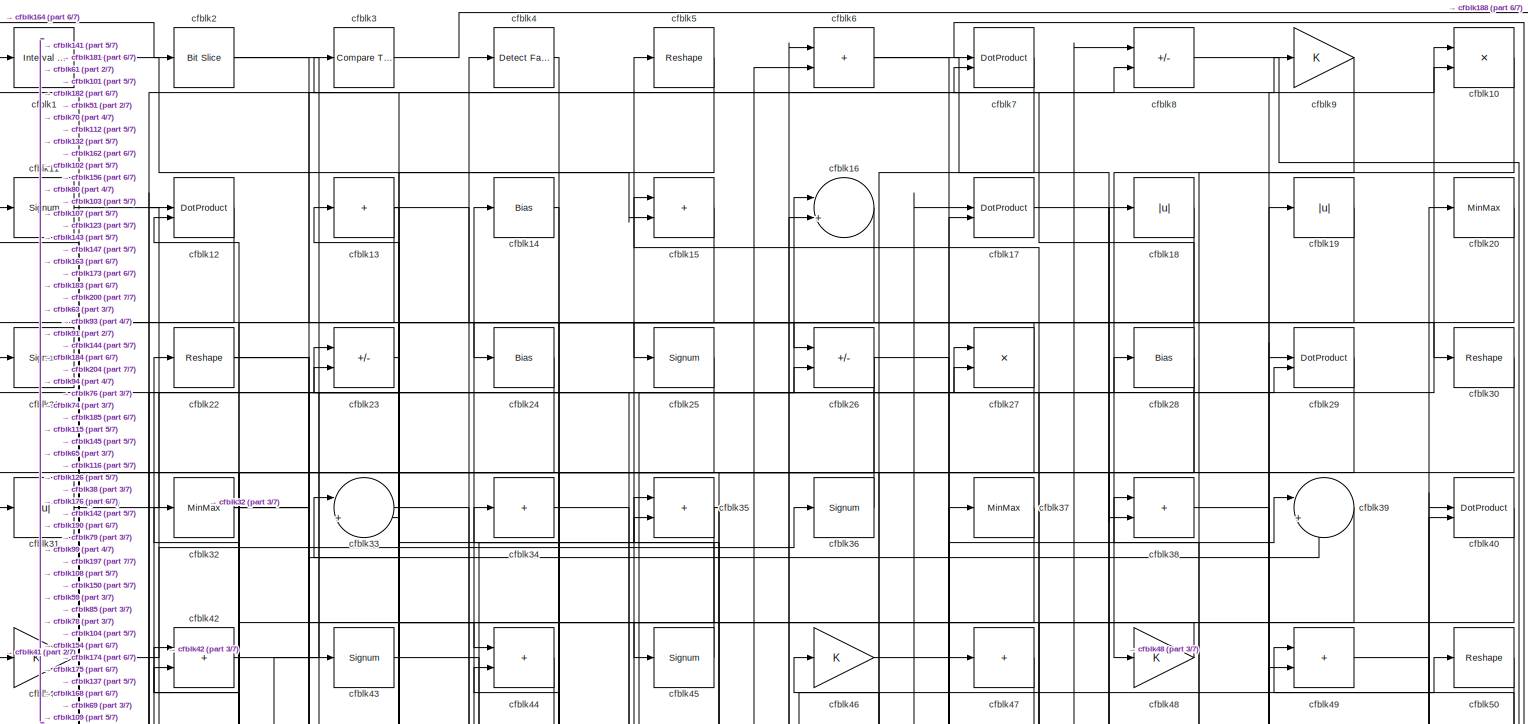
[diagram: root canvas - part 1/7, full width, top band]
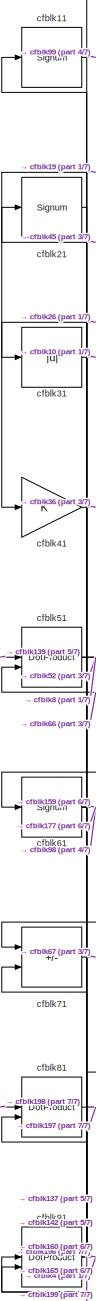
[diagram: root canvas - part 2/7, top left region]
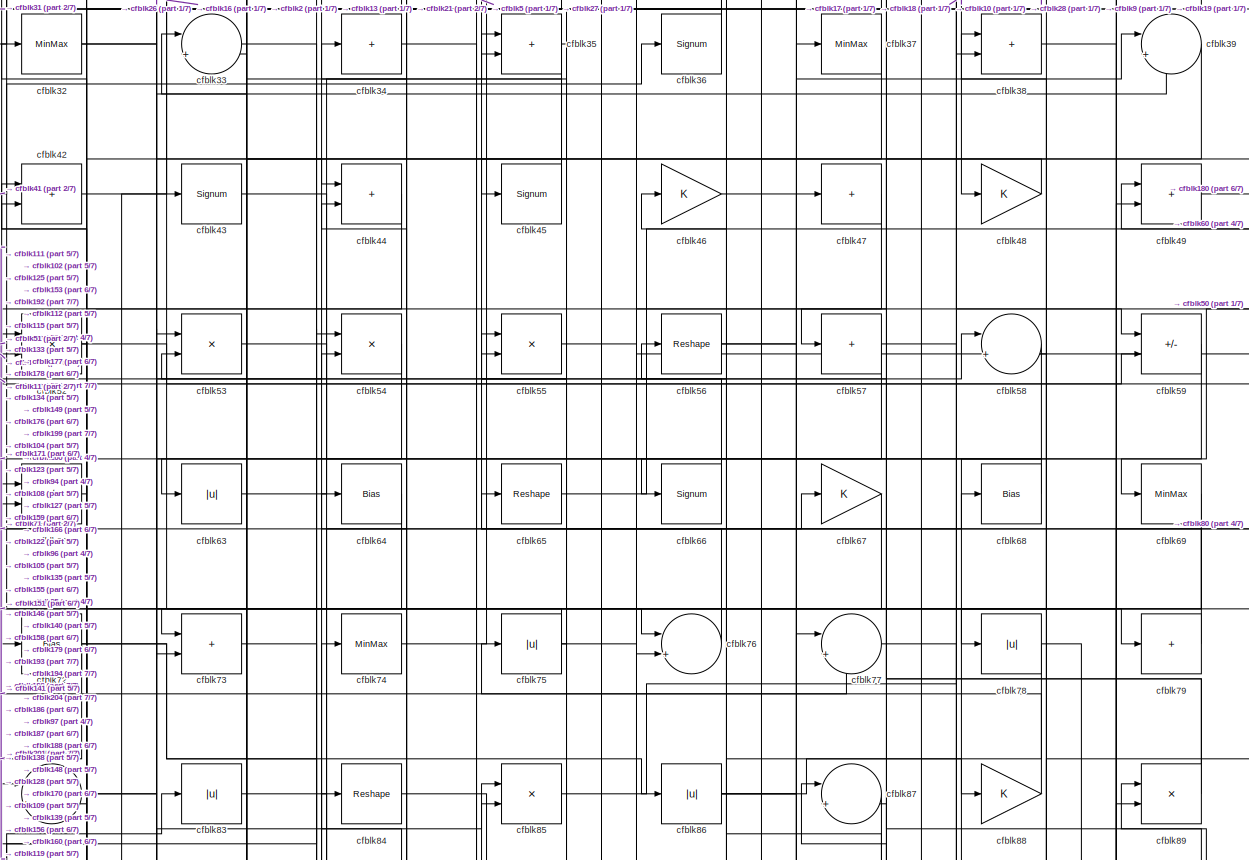
[diagram: root canvas - part 3/7, full width, top band]
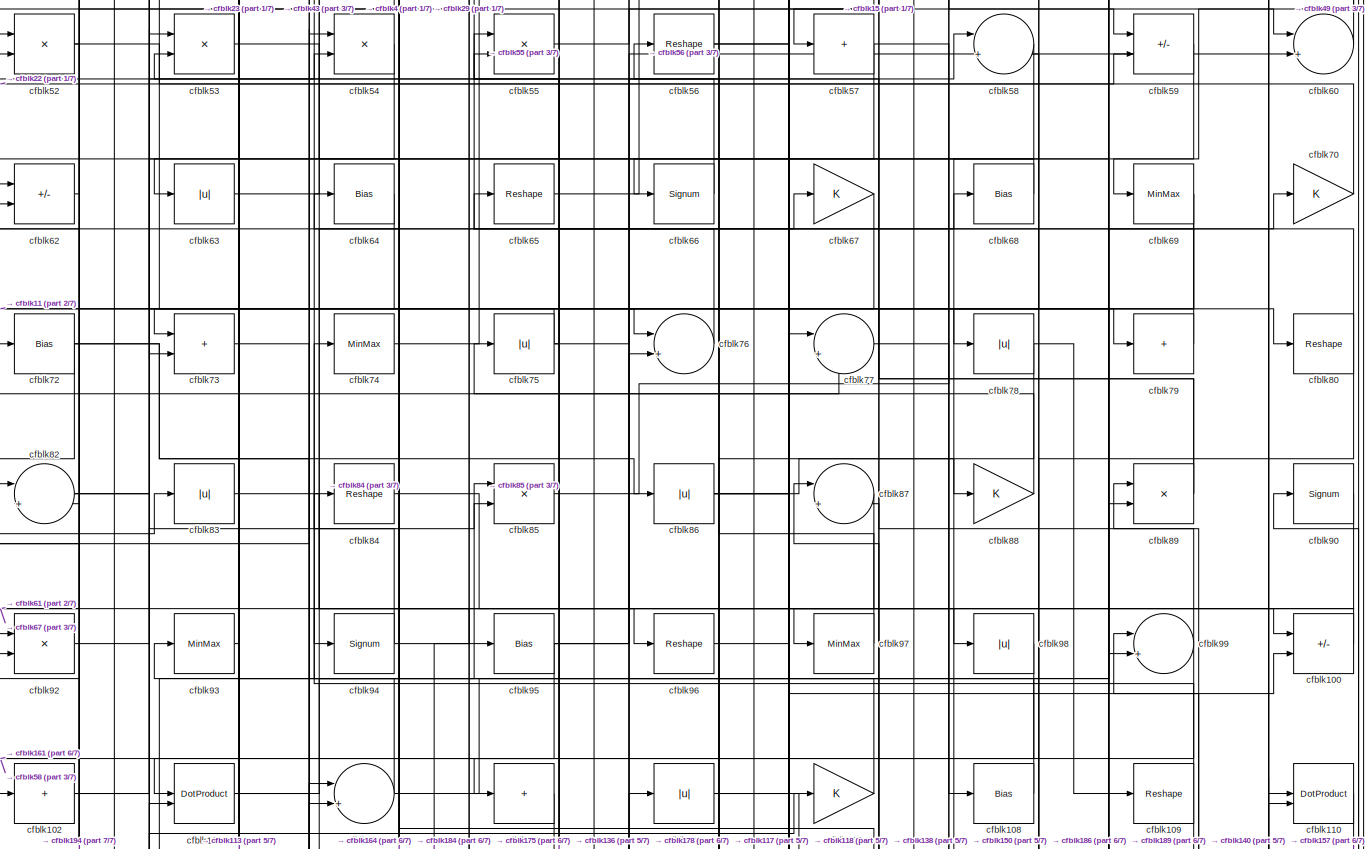
[diagram: root canvas - part 4/7, full width, middle band]
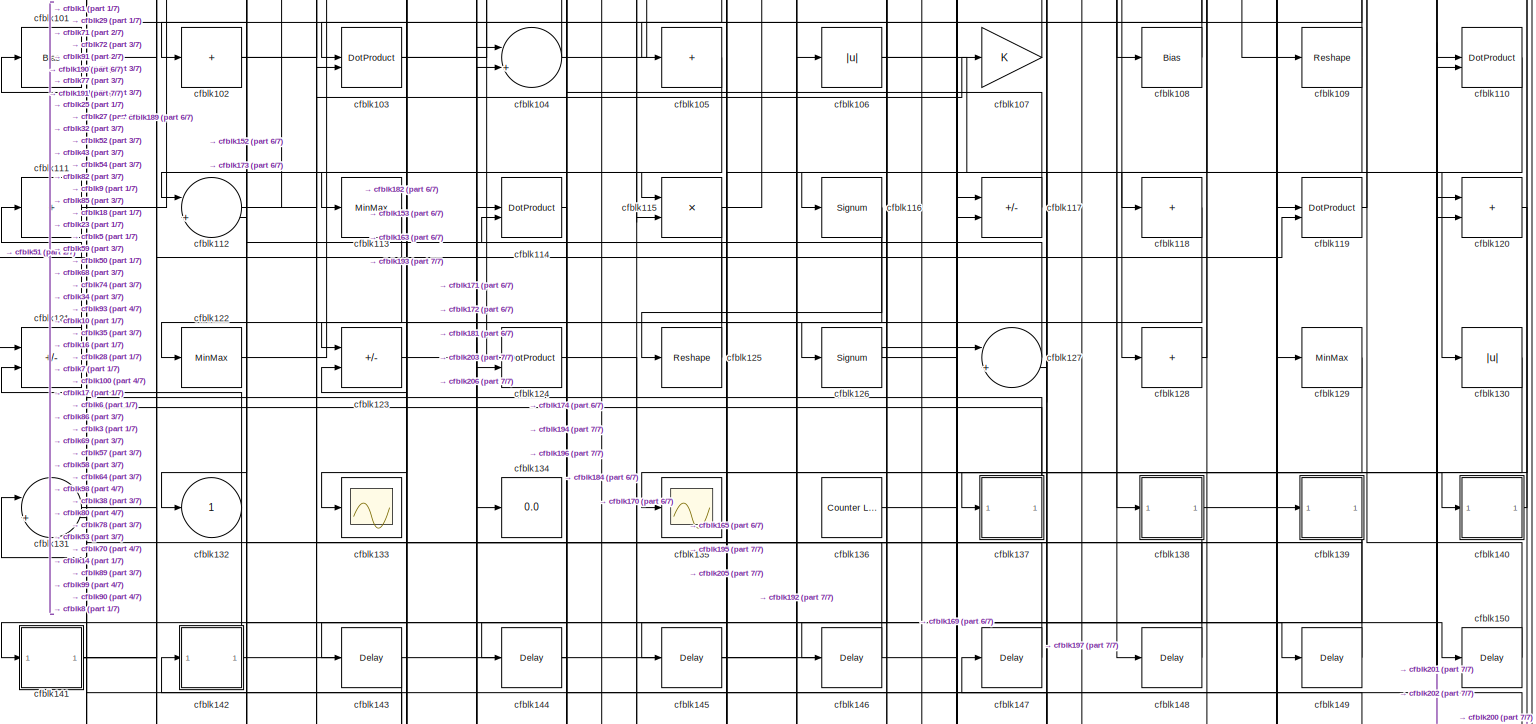
[diagram: root canvas - part 5/7, full width, middle band]
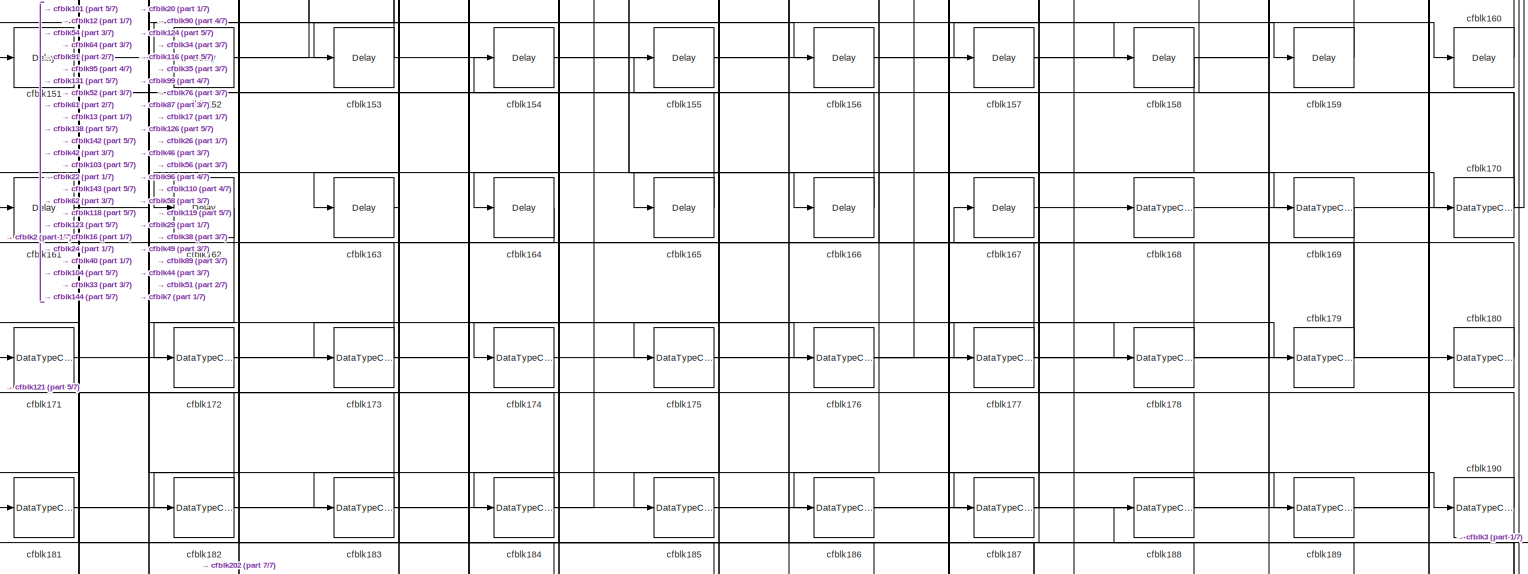
[diagram: root canvas - part 6/7, full width, bottom band]
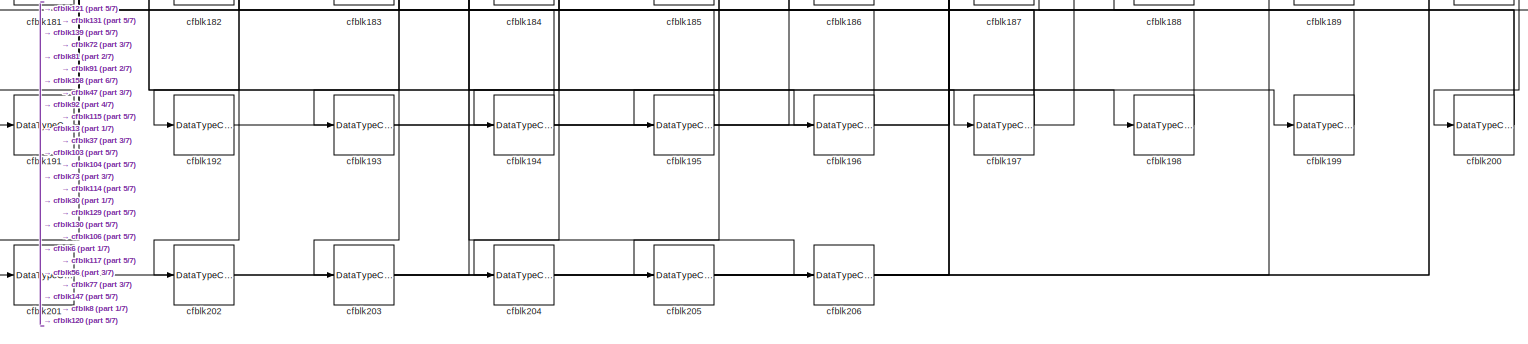
[diagram: root canvas - part 7/7, full width, bottom band]
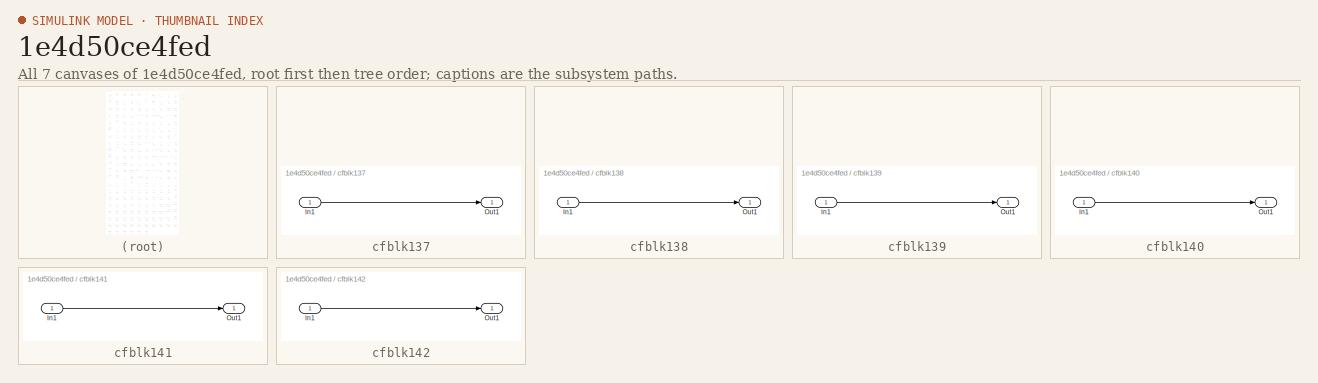
[diagram: thumbnail index - all 7 canvases of the model, root first then tree order]
MODEL slx_1e4d50ce4fed
KIND model
CONFIG AbsTol = auto
CONFIG EnableMultiTasking = off
CONFIG FixedStep = auto
CONFIG MaxStep = auto
CONFIG MinStep = auto
CONFIG RelTol = 1e-3
CONFIG SampleTimeConstraint = Unconstrained
CONFIG SolverName = VariableStepAuto
CONFIG StartTime = 0.0
CONFIG StopTime = 10.0
BLOCK [Reference] cfblk1  REF=hdlsllib/Logic and Bit
Operations/Interval Test
  SourceBlock = hdlsllib/Logic and Bit\nOperations/Interval Test
  SourceType = Interval Test
BLOCK [Product] cfblk10
  Inputs = */
  RndMeth = Zero
  SaturateOnIntegerOverflow = on
BLOCK [Sum] cfblk100
  IconShape = rectangular
  Inputs = +-
BLOCK [Bias] cfblk101
  Bias = 0.0
  SaturateOnIntegerOverflow = off
BLOCK [Sum] cfblk102
  IconShape = rectangular
  Inputs = +
BLOCK [DotProduct] cfblk103
  OutDataTypeStr = Inherit: Inherit via internal rule
BLOCK [Sum] cfblk104
  Inputs = |++
BLOCK [Sum] cfblk105
  IconShape = rectangular
  Inputs = +
BLOCK [Abs] cfblk106
  SaturateOnIntegerOverflow = off
BLOCK [Gain] cfblk107
BLOCK [Bias] cfblk108
  Bias = 0.0
  SaturateOnIntegerOverflow = off
BLOCK [Reshape] cfblk109
BLOCK [Signum] cfblk11
BLOCK [DotProduct] cfblk110
  OutDataTypeStr = Inherit: Inherit via internal rule
BLOCK [Sum] cfblk111
  IconShape = rectangular
  Inputs = +
BLOCK [Sum] cfblk112
  Inputs = |++
BLOCK [MinMax] cfblk113
BLOCK [DotProduct] cfblk114
  OutDataTypeStr = Inherit: Inherit via internal rule
BLOCK [Product] cfblk115
  Inputs = */
  RndMeth = Zero
  SaturateOnIntegerOverflow = on
BLOCK [Signum] cfblk116
BLOCK [Sum] cfblk117
  IconShape = rectangular
  Inputs = +-
BLOCK [Sum] cfblk118
  IconShape = rectangular
  Inputs = +
BLOCK [DotProduct] cfblk119
  OutDataTypeStr = Inherit: Inherit via internal rule
BLOCK [DotProduct] cfblk12
  OutDataTypeStr = Inherit: Inherit via internal rule
BLOCK [Sum] cfblk120
  IconShape = rectangular
BLOCK [Sum] cfblk121
  IconShape = rectangular
  Inputs = +-
BLOCK [MinMax] cfblk122
BLOCK [Sum] cfblk123
  IconShape = rectangular
  Inputs = +-
BLOCK [DotProduct] cfblk124
  OutDataTypeStr = Inherit: Inherit via internal rule
BLOCK [Reshape] cfblk125
BLOCK [Signum] cfblk126
BLOCK [Sum] cfblk127
  Inputs = |++
BLOCK [Sum] cfblk128
  IconShape = rectangular
  Inputs = +
BLOCK [MinMax] cfblk129
BLOCK [Sum] cfblk13
  IconShape = rectangular
  Inputs = +
BLOCK [Abs] cfblk130
  SaturateOnIntegerOverflow = off
BLOCK [Sum] cfblk131
  Inputs = |++
BLOCK [Outport] cfblk132
  VectorParamsAs1DForOutWhenUnconnected = off
BLOCK [Scope] cfblk133
  Floating = off
  NumInputPorts = 1
  ScopeSpecificationString = Simulink.scopes.TimeScopeBlockCfg('CurrentConfiguration', extmgr.ConfigurationSet(extmgr.Configuration('Core','General UI',true),extmgr.Configuration('Core','Source UI',true),extmgr.Configuration('Sources','WiredSimulink',true,'DataLoggingVariableName','ScopeData2','DataLoggingSaveFormat','Array','DataLoggingLimitDataPoints',true,'DataLoggingDecimation','1'),extmgr.Configuration('Visuals','Time Do...<+868ch>
BLOCK [Display] cfblk134
  Decimation = 1
BLOCK [Scope] cfblk135
  Floating = off
  NumInputPorts = 1
  ScopeSpecificationString = Simulink.scopes.TimeScopeBlockCfg('CurrentConfiguration', extmgr.ConfigurationSet(extmgr.Configuration('Core','General UI',true),extmgr.Configuration('Core','Source UI',true),extmgr.Configuration('Sources','WiredSimulink',true,'DataLoggingVariableName','ScopeData2','DataLoggingSaveFormat','Array','DataLoggingLimitDataPoints',true,'DataLoggingDecimation','1'),extmgr.Configuration('Visuals','Time Do...<+868ch>
BLOCK [Reference] cfblk136  REF=hdlsllib/Sources/Counter
Limited
  SourceBlock = hdlsllib/Sources/Counter\nLimited
  SourceType = Counter Limited
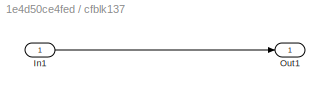
BLOCK [SubSystem] cfblk137
  LibrarySourceBlock = hdlsllib/Ports &\nSubsystems/Subsystem
BLOCK [Inport] cfblk137/In1
BLOCK [Outport] cfblk137/Out1
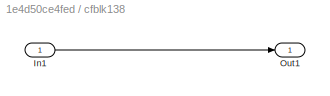
BLOCK [SubSystem] cfblk138
  LibrarySourceBlock = hdlsllib/Ports &\nSubsystems/Subsystem
BLOCK [Inport] cfblk138/In1
BLOCK [Outport] cfblk138/Out1
BLOCK [SubSystem] cfblk139
  LibrarySourceBlock = hdlsllib/Ports &\nSubsystems/Subsystem
BLOCK [Inport] cfblk139/In1
BLOCK [Outport] cfblk139/Out1
BLOCK [Bias] cfblk14
  Bias = 0.0
  SaturateOnIntegerOverflow = off
BLOCK [SubSystem] cfblk140
  LibrarySourceBlock = hdlsllib/Ports &\nSubsystems/Subsystem
BLOCK [Inport] cfblk140/In1
BLOCK [Outport] cfblk140/Out1
BLOCK [SubSystem] cfblk141
  LibrarySourceBlock = hdlsllib/Ports &\nSubsystems/Subsystem
BLOCK [Inport] cfblk141/In1
BLOCK [Outport] cfblk141/Out1
BLOCK [SubSystem] cfblk142
  LibrarySourceBlock = hdlsllib/Ports &\nSubsystems/Subsystem
BLOCK [Inport] cfblk142/In1
BLOCK [Outport] cfblk142/Out1
BLOCK [Delay] cfblk143
  InputPortMap = u0
  SampleTime = 1
BLOCK [Delay] cfblk144
  InputPortMap = u0
  SampleTime = 1
BLOCK [Delay] cfblk145
  InputPortMap = u0
  SampleTime = 1
BLOCK [Delay] cfblk146
  InputPortMap = u0
  SampleTime = 1
BLOCK [Delay] cfblk147
  InputPortMap = u0
  SampleTime = 1
BLOCK [Delay] cfblk148
  InputPortMap = u0
  SampleTime = 1
BLOCK [Delay] cfblk149
  InputPortMap = u0
  SampleTime = 1
BLOCK [Sum] cfblk15
  IconShape = rectangular
BLOCK [Delay] cfblk150
  InputPortMap = u0
  SampleTime = 1
BLOCK [Delay] cfblk151
  InputPortMap = u0
  SampleTime = 1
BLOCK [Delay] cfblk152
  InputPortMap = u0
  SampleTime = 1
BLOCK [Delay] cfblk153
  InputPortMap = u0
  SampleTime = 1
BLOCK [Delay] cfblk154
  InputPortMap = u0
  SampleTime = 1
BLOCK [Delay] cfblk155
  InputPortMap = u0
  SampleTime = 1
BLOCK [Delay] cfblk156
  InputPortMap = u0
  SampleTime = 1
BLOCK [Delay] cfblk157
  InputPortMap = u0
  SampleTime = 1
BLOCK [Delay] cfblk158
  InputPortMap = u0
  SampleTime = 1
BLOCK [Delay] cfblk159
  InputPortMap = u0
  SampleTime = 1
BLOCK [Sum] cfblk16
  Inputs = |++
BLOCK [Delay] cfblk160
  InputPortMap = u0
  SampleTime = 1
BLOCK [Delay] cfblk161
  InputPortMap = u0
  SampleTime = 1
BLOCK [Delay] cfblk162
  InputPortMap = u0
  SampleTime = 1
BLOCK [Delay] cfblk163
  InputPortMap = u0
  SampleTime = 1
BLOCK [Delay] cfblk164
  InputPortMap = u0
  SampleTime = 1
BLOCK [Delay] cfblk165
  InputPortMap = u0
  SampleTime = 1
BLOCK [Delay] cfblk166
  InputPortMap = u0
  SampleTime = 1
BLOCK [Delay] cfblk167
  InputPortMap = u0
  SampleTime = 1
BLOCK [DataTypeConversion] cfblk168
  OutDataTypeStr = uint8
  RndMeth = Floor
  SaturateOnIntegerOverflow = off
BLOCK [DataTypeConversion] cfblk169
  OutDataTypeStr = uint8
  RndMeth = Floor
  SaturateOnIntegerOverflow = off
BLOCK [DotProduct] cfblk17
  OutDataTypeStr = Inherit: Inherit via internal rule
BLOCK [DataTypeConversion] cfblk170
  RndMeth = Floor
  SaturateOnIntegerOverflow = off
BLOCK [DataTypeConversion] cfblk171
  OutDataTypeStr = uint8
  RndMeth = Floor
  SaturateOnIntegerOverflow = off
BLOCK [DataTypeConversion] cfblk172
  OutDataTypeStr = uint8
  RndMeth = Floor
  SaturateOnIntegerOverflow = off
BLOCK [DataTypeConversion] cfblk173
  OutDataTypeStr = uint8
  RndMeth = Floor
  SaturateOnIntegerOverflow = off
BLOCK [DataTypeConversion] cfblk174
  OutDataTypeStr = uint8
  RndMeth = Floor
  SaturateOnIntegerOverflow = off
BLOCK [DataTypeConversion] cfblk175
  OutDataTypeStr = uint8
  RndMeth = Floor
  SaturateOnIntegerOverflow = off
BLOCK [DataTypeConversion] cfblk176
  RndMeth = Floor
  SaturateOnIntegerOverflow = off
BLOCK [DataTypeConversion] cfblk177
  OutDataTypeStr = uint8
  RndMeth = Floor
  SaturateOnIntegerOverflow = off
BLOCK [DataTypeConversion] cfblk178
  OutDataTypeStr = uint8
  RndMeth = Floor
  SaturateOnIntegerOverflow = off
BLOCK [DataTypeConversion] cfblk179
  RndMeth = Floor
  SaturateOnIntegerOverflow = off
BLOCK [Abs] cfblk18
  SaturateOnIntegerOverflow = off
BLOCK [DataTypeConversion] cfblk180
  OutDataTypeStr = uint8
  RndMeth = Floor
  SaturateOnIntegerOverflow = off
BLOCK [DataTypeConversion] cfblk181
  RndMeth = Floor
  SaturateOnIntegerOverflow = off
BLOCK [DataTypeConversion] cfblk182
  OutDataTypeStr = uint8
  RndMeth = Floor
  SaturateOnIntegerOverflow = off
BLOCK [DataTypeConversion] cfblk183
  OutDataTypeStr = uint8
  RndMeth = Floor
  SaturateOnIntegerOverflow = off
BLOCK [DataTypeConversion] cfblk184
  RndMeth = Floor
  SaturateOnIntegerOverflow = off
BLOCK [DataTypeConversion] cfblk185
  OutDataTypeStr = uint8
  RndMeth = Floor
  SaturateOnIntegerOverflow = off
BLOCK [DataTypeConversion] cfblk186
  OutDataTypeStr = uint8
  RndMeth = Floor
  SaturateOnIntegerOverflow = off
BLOCK [DataTypeConversion] cfblk187
  OutDataTypeStr = uint8
  RndMeth = Floor
  SaturateOnIntegerOverflow = off
BLOCK [DataTypeConversion] cfblk188
  OutDataTypeStr = uint8
  RndMeth = Floor
  SaturateOnIntegerOverflow = off
BLOCK [DataTypeConversion] cfblk189
  OutDataTypeStr = uint8
  RndMeth = Floor
  SaturateOnIntegerOverflow = off
BLOCK [Abs] cfblk19
  SaturateOnIntegerOverflow = off
BLOCK [DataTypeConversion] cfblk190
  OutDataTypeStr = uint8
  RndMeth = Floor
  SaturateOnIntegerOverflow = off
BLOCK [DataTypeConversion] cfblk191
  OutDataTypeStr = uint8
  RndMeth = Floor
  SaturateOnIntegerOverflow = off
BLOCK [DataTypeConversion] cfblk192
  OutDataTypeStr = uint8
  RndMeth = Floor
  SaturateOnIntegerOverflow = off
BLOCK [DataTypeConversion] cfblk193
  OutDataTypeStr = uint8
  RndMeth = Floor
  SaturateOnIntegerOverflow = off
BLOCK [DataTypeConversion] cfblk194
  RndMeth = Floor
  SaturateOnIntegerOverflow = off
BLOCK [DataTypeConversion] cfblk195
  OutDataTypeStr = uint8
  RndMeth = Floor
  SaturateOnIntegerOverflow = off
BLOCK [DataTypeConversion] cfblk196
  OutDataTypeStr = uint8
  RndMeth = Floor
  SaturateOnIntegerOverflow = off
BLOCK [DataTypeConversion] cfblk197
  RndMeth = Floor
  SaturateOnIntegerOverflow = off
BLOCK [DataTypeConversion] cfblk198
  OutDataTypeStr = uint8
  RndMeth = Floor
  SaturateOnIntegerOverflow = off
BLOCK [DataTypeConversion] cfblk199
  OutDataTypeStr = uint8
  RndMeth = Floor
  SaturateOnIntegerOverflow = off
BLOCK [Reference] cfblk2  REF=hdlsllib/Logic and Bit
Operations/Bit Slice
  SourceBlock = hdlsllib/Logic and Bit\nOperations/Bit Slice
  SourceType = Bit Slice
BLOCK [MinMax] cfblk20
BLOCK [DataTypeConversion] cfblk200
  RndMeth = Floor
  SaturateOnIntegerOverflow = off
BLOCK [DataTypeConversion] cfblk201
  OutDataTypeStr = uint8
  RndMeth = Floor
  SaturateOnIntegerOverflow = off
BLOCK [DataTypeConversion] cfblk202
  OutDataTypeStr = uint8
  RndMeth = Floor
  SaturateOnIntegerOverflow = off
BLOCK [DataTypeConversion] cfblk203
  RndMeth = Floor
  SaturateOnIntegerOverflow = off
BLOCK [DataTypeConversion] cfblk204
  OutDataTypeStr = uint8
  RndMeth = Floor
  SaturateOnIntegerOverflow = off
BLOCK [DataTypeConversion] cfblk205
  OutDataTypeStr = uint8
  RndMeth = Floor
  SaturateOnIntegerOverflow = off
BLOCK [DataTypeConversion] cfblk206
  OutDataTypeStr = uint8
  RndMeth = Floor
  SaturateOnIntegerOverflow = off
BLOCK [Signum] cfblk21
BLOCK [Reshape] cfblk22
BLOCK [Sum] cfblk23
  IconShape = rectangular
  Inputs = +-
BLOCK [Bias] cfblk24
  Bias = 0.0
  SaturateOnIntegerOverflow = off
BLOCK [Signum] cfblk25
BLOCK [Sum] cfblk26
  IconShape = rectangular
  Inputs = +-
BLOCK [Product] cfblk27
  Inputs = */
  RndMeth = Zero
  SaturateOnIntegerOverflow = on
BLOCK [Bias] cfblk28
  Bias = 0.0
  SaturateOnIntegerOverflow = off
BLOCK [DotProduct] cfblk29
  OutDataTypeStr = Inherit: Inherit via internal rule
BLOCK [Reference] cfblk3  REF=hdlsllib/Logic and Bit
Operations/Compare
To Zero
  SourceBlock = hdlsllib/Logic and Bit\nOperations/Compare\nTo Zero
  SourceType = Compare To Zero
BLOCK [Reshape] cfblk30
BLOCK [Abs] cfblk31
  SaturateOnIntegerOverflow = off
BLOCK [MinMax] cfblk32
BLOCK [Sum] cfblk33
  Inputs = |++
BLOCK [Sum] cfblk34
  IconShape = rectangular
  Inputs = +
BLOCK [Sum] cfblk35
  IconShape = rectangular
BLOCK [Signum] cfblk36
BLOCK [MinMax] cfblk37
BLOCK [Sum] cfblk38
  IconShape = rectangular
BLOCK [Sum] cfblk39
  Inputs = |++
BLOCK [Reference] cfblk4  REF=hdlsllib/Logic and Bit
Operations/Detect Fall
Negative
  SourceBlock = hdlsllib/Logic and Bit\nOperations/Detect Fall\nNegative
  SourceType = Detect Fall Negative
BLOCK [DotProduct] cfblk40
  OutDataTypeStr = Inherit: Inherit via internal rule
BLOCK [Gain] cfblk41
BLOCK [Sum] cfblk42
  IconShape = rectangular
BLOCK [Signum] cfblk43
BLOCK [Sum] cfblk44
  IconShape = rectangular
BLOCK [Signum] cfblk45
BLOCK [Gain] cfblk46
BLOCK [Sum] cfblk47
  IconShape = rectangular
  Inputs = +
BLOCK [Gain] cfblk48
BLOCK [Sum] cfblk49
  IconShape = rectangular
BLOCK [Reshape] cfblk5
BLOCK [Reshape] cfblk50
BLOCK [DotProduct] cfblk51
  OutDataTypeStr = Inherit: Inherit via internal rule
BLOCK [Product] cfblk52
  Inputs = */
  RndMeth = Zero
  SaturateOnIntegerOverflow = on
BLOCK [Product] cfblk53
  Inputs = */
  RndMeth = Zero
  SaturateOnIntegerOverflow = on
BLOCK [Product] cfblk54
  Inputs = */
  RndMeth = Zero
  SaturateOnIntegerOverflow = on
BLOCK [Product] cfblk55
  Inputs = */
  RndMeth = Zero
  SaturateOnIntegerOverflow = on
BLOCK [Reshape] cfblk56
BLOCK [Sum] cfblk57
  IconShape = rectangular
  Inputs = +
BLOCK [Sum] cfblk58
  Inputs = |++
BLOCK [Sum] cfblk59
  IconShape = rectangular
  Inputs = +-
BLOCK [Sum] cfblk6
  IconShape = rectangular
BLOCK [Sum] cfblk60
  Inputs = |++
BLOCK [Signum] cfblk61
BLOCK [Sum] cfblk62
  IconShape = rectangular
  Inputs = +-
BLOCK [Abs] cfblk63
  SaturateOnIntegerOverflow = off
BLOCK [Bias] cfblk64
  Bias = 0.0
  SaturateOnIntegerOverflow = off
BLOCK [Reshape] cfblk65
BLOCK [Signum] cfblk66
BLOCK [Gain] cfblk67
BLOCK [Bias] cfblk68
  Bias = 0.0
  SaturateOnIntegerOverflow = off
BLOCK [MinMax] cfblk69
BLOCK [DotProduct] cfblk7
  OutDataTypeStr = Inherit: Inherit via internal rule
BLOCK [Gain] cfblk70
BLOCK [Sum] cfblk71
  IconShape = rectangular
  Inputs = +-
BLOCK [Bias] cfblk72
  Bias = 0.0
  SaturateOnIntegerOverflow = off
BLOCK [Sum] cfblk73
  IconShape = rectangular
BLOCK [MinMax] cfblk74
BLOCK [Abs] cfblk75
  SaturateOnIntegerOverflow = off
BLOCK [Sum] cfblk76
  Inputs = |++
BLOCK [Sum] cfblk77
  Inputs = |++
BLOCK [Abs] cfblk78
  SaturateOnIntegerOverflow = off
BLOCK [Sum] cfblk79
  IconShape = rectangular
  Inputs = +
BLOCK [Sum] cfblk8
  IconShape = rectangular
  Inputs = +-
BLOCK [Reshape] cfblk80
BLOCK [DotProduct] cfblk81
  OutDataTypeStr = Inherit: Inherit via internal rule
BLOCK [Sum] cfblk82
  Inputs = |++
BLOCK [Abs] cfblk83
  SaturateOnIntegerOverflow = off
BLOCK [Reshape] cfblk84
BLOCK [Product] cfblk85
  Inputs = */
  RndMeth = Zero
  SaturateOnIntegerOverflow = on
BLOCK [Abs] cfblk86
  SaturateOnIntegerOverflow = off
BLOCK [Sum] cfblk87
  Inputs = |++
BLOCK [Gain] cfblk88
BLOCK [Product] cfblk89
  Inputs = */
  RndMeth = Zero
  SaturateOnIntegerOverflow = on
BLOCK [Gain] cfblk9
BLOCK [Signum] cfblk90
BLOCK [DotProduct] cfblk91
  OutDataTypeStr = Inherit: Inherit via internal rule
BLOCK [Product] cfblk92
  Inputs = */
  RndMeth = Zero
  SaturateOnIntegerOverflow = on
BLOCK [MinMax] cfblk93
BLOCK [Signum] cfblk94
BLOCK [Bias] cfblk95
  Bias = 0.0
  SaturateOnIntegerOverflow = off
BLOCK [Reshape] cfblk96
BLOCK [MinMax] cfblk97
BLOCK [Abs] cfblk98
  SaturateOnIntegerOverflow = off
BLOCK [Sum] cfblk99
  Inputs = |++
LINE cfblk100:1 -> cfblk97:1
LINE cfblk101:1 -> cfblk28:1
NET cfblk102:1 -> cfblk54:2, cfblk9:1
NET cfblk103:1 -> cfblk206:1, cfblk50:1
NET cfblk104:1 -> cfblk10:2, cfblk74:1
LINE cfblk105:1 -> cfblk112:1
NET cfblk106:1 -> cfblk130:1, cfblk149:1
LINE cfblk107:1 -> cfblk3:1
LINE cfblk108:1 -> cfblk64:1
NET cfblk109:1 -> cfblk145:1, cfblk14:1
LINE cfblk10:1 -> cfblk48:1
LINE cfblk110:1 -> cfblk157:1
LINE cfblk111:1 -> cfblk83:1
NET cfblk112:1 -> cfblk107:1, cfblk43:1
LINE cfblk113:1 -> cfblk122:1
LINE cfblk114:1 -> cfblk194:1
NET cfblk115:1 -> cfblk193:1, cfblk6:2
NET cfblk116:1 -> cfblk125:1, cfblk165:1
LINE cfblk117:1 -> cfblk93:1
LINE cfblk118:1 -> cfblk153:1
LINE cfblk119:1 -> cfblk89:1
LINE cfblk11:1 -> cfblk99:2
LINE cfblk120:1 -> cfblk200:1
LINE cfblk121:1 -> cfblk111:1
LINE cfblk122:1 -> cfblk85:1
LINE cfblk123:1 -> cfblk68:1
LINE cfblk124:1 -> cfblk170:1
LINE cfblk125:1 -> cfblk32:1
NET cfblk126:1 -> cfblk127:1, cfblk169:1
LINE cfblk127:1 -> cfblk34:1
LINE cfblk128:1 -> cfblk38:1
LINE cfblk129:1 -> cfblk205:1
LINE cfblk12:1 -> cfblk181:1
LINE cfblk130:1 -> cfblk195:1
LINE cfblk131:1 -> cfblk189:1
LINE cfblk136:1 -> cfblk100:2
LINE cfblk137/In1:1 -> cfblk137/Out1:1
NET cfblk137:1 -> cfblk1:1, cfblk71:2
LINE cfblk138/In1:1 -> cfblk138/Out1:1
NET cfblk138:1 -> cfblk152:1, cfblk70:1
LINE cfblk139/In1:1 -> cfblk139/Out1:1
NET cfblk139:1 -> cfblk191:1, cfblk51:1
NET cfblk13:1 -> cfblk162:1, cfblk26:1, cfblk63:1
LINE cfblk140/In1:1 -> cfblk140/Out1:1
LINE cfblk140:1 -> cfblk90:1
LINE cfblk141/In1:1 -> cfblk141/Out1:1
NET cfblk141:1 -> cfblk119:2, cfblk62:1, cfblk77:2
LINE cfblk142/In1:1 -> cfblk142/Out1:1
NET cfblk142:1 -> cfblk17:2, cfblk91:1
LINE cfblk143:1 -> cfblk182:1
LINE cfblk144:1 -> cfblk174:1
LINE cfblk145:1 -> cfblk16:2
LINE cfblk146:1 -> cfblk53:1
LINE cfblk147:1 -> cfblk23:2
LINE cfblk148:1 -> cfblk82:1
LINE cfblk149:1 -> cfblk54:1
LINE cfblk14:1 -> cfblk144:1
LINE cfblk150:1 -> cfblk99:1
LINE cfblk151:1 -> cfblk76:2
LINE cfblk152:1 -> cfblk103:2
LINE cfblk153:1 -> cfblk62:2
LINE cfblk154:1 -> cfblk29:1
LINE cfblk155:1 -> cfblk35:2
LINE cfblk156:1 -> cfblk89:2
LINE cfblk157:1 -> cfblk187:1
LINE cfblk158:1 -> cfblk202:1
LINE cfblk159:1 -> cfblk44:2
LINE cfblk15:1 -> cfblk25:1
LINE cfblk160:1 -> cfblk51:2
LINE cfblk161:1 -> cfblk52:2
LINE cfblk162:1 -> cfblk172:1
LINE cfblk163:1 -> cfblk123:2
LINE cfblk164:1 -> cfblk2:1
LINE cfblk165:1 -> cfblk91:2
LINE cfblk166:1 -> cfblk42:2
LINE cfblk167:1 -> cfblk168:1
LINE cfblk168:1 -> cfblk7:1
LINE cfblk169:1 -> cfblk167:1
LINE cfblk16:1 -> cfblk183:1
NET cfblk170:1 -> cfblk101:1, cfblk58:2
LINE cfblk171:1 -> cfblk124:1
LINE cfblk172:1 -> cfblk124:2
LINE cfblk173:1 -> cfblk142:1
LINE cfblk174:1 -> cfblk40:1
LINE cfblk175:1 -> cfblk40:2
NET cfblk176:1 -> cfblk17:1, cfblk49:2
LINE cfblk177:1 -> cfblk33:1
LINE cfblk178:1 -> cfblk33:2
NET cfblk179:1 -> cfblk154:1, cfblk155:1
LINE cfblk17:1 -> cfblk59:1
LINE cfblk180:1 -> cfblk46:1
NET cfblk181:1 -> cfblk104:2, cfblk119:1
LINE cfblk182:1 -> cfblk12:1
LINE cfblk183:1 -> cfblk12:2
NET cfblk184:1 -> cfblk121:1, cfblk95:1
LINE cfblk185:1 -> cfblk20:1
LINE cfblk186:1 -> cfblk110:1
LINE cfblk187:1 -> cfblk87:1
LINE cfblk188:1 -> cfblk87:2
LINE cfblk189:1 -> cfblk110:2
LINE cfblk18:1 -> cfblk143:1
LINE cfblk190:1 -> cfblk131:1
LINE cfblk191:1 -> cfblk131:2
LINE cfblk192:1 -> cfblk106:1
LINE cfblk193:1 -> cfblk47:1
NET cfblk194:1 -> cfblk77:1, cfblk92:2
LINE cfblk195:1 -> cfblk114:1
LINE cfblk196:1 -> cfblk114:2
NET cfblk197:1 -> cfblk121:2, cfblk6:1, cfblk8:1
LINE cfblk198:1 -> cfblk81:1
LINE cfblk199:1 -> cfblk81:2
LINE cfblk19:1 -> cfblk41:1
LINE cfblk1:1 -> cfblk15:2
NET cfblk200:1 -> cfblk13:1, cfblk147:1
LINE cfblk201:1 -> cfblk120:1
LINE cfblk202:1 -> cfblk120:2
NET cfblk203:1 -> cfblk104:1, cfblk117:1
LINE cfblk204:1 -> cfblk37:1
LINE cfblk205:1 -> cfblk117:2
LINE cfblk206:1 -> cfblk129:1
LINE cfblk20:1 -> cfblk184:1
LINE cfblk21:1 -> cfblk71:1
NET cfblk22:1 -> cfblk156:1, cfblk80:1
LINE cfblk23:1 -> cfblk123:1
LINE cfblk24:1 -> cfblk163:1
LINE cfblk25:1 -> cfblk132:1
NET cfblk26:1 -> cfblk185:1, cfblk190:1, cfblk61:1
NET cfblk27:1 -> cfblk112:2, cfblk24:1
NET cfblk28:1 -> cfblk116:1, cfblk38:2, cfblk7:2
LINE cfblk29:1 -> cfblk141:1
NET cfblk2:1 -> cfblk30:1, cfblk76:1
LINE cfblk30:1 -> cfblk204:1
LINE cfblk31:1 -> cfblk10:1
NET cfblk32:1 -> cfblk26:2, cfblk44:1
LINE cfblk33:1 -> cfblk176:1
LINE cfblk34:1 -> cfblk166:1
NET cfblk35:1 -> cfblk105:1, cfblk82:2
LINE cfblk36:1 -> cfblk31:1
LINE cfblk37:1 -> cfblk203:1
LINE cfblk38:1 -> cfblk160:1
LINE cfblk39:1 -> cfblk57:1
LINE cfblk3:1 -> cfblk188:1
LINE cfblk40:1 -> cfblk173:1
LINE cfblk41:1 -> cfblk36:1
LINE cfblk42:1 -> cfblk16:1
LINE cfblk43:1 -> cfblk100:1
LINE cfblk44:1 -> cfblk72:1
LINE cfblk45:1 -> cfblk21:1
LINE cfblk46:1 -> cfblk179:1
LINE cfblk47:1 -> cfblk192:1
LINE cfblk48:1 -> cfblk45:1
LINE cfblk49:1 -> cfblk180:1
LINE cfblk4:1 -> cfblk94:1
LINE cfblk50:1 -> cfblk69:1
NET cfblk51:1 -> cfblk52:1, cfblk8:2
NET cfblk52:1 -> cfblk102:1, cfblk59:2
LINE cfblk53:1 -> cfblk139:1
LINE cfblk54:1 -> cfblk171:1
LINE cfblk55:1 -> cfblk60:1
NET cfblk56:1 -> cfblk158:1, cfblk198:1
NET cfblk57:1 -> cfblk138:1, cfblk73:2
LINE cfblk58:1 -> cfblk128:1
LINE cfblk59:1 -> cfblk133:1
LINE cfblk5:1 -> cfblk103:1
LINE cfblk60:1 -> cfblk49:1
NET cfblk61:1 -> cfblk159:1, cfblk177:1, cfblk98:1
LINE cfblk62:1 -> cfblk42:1
LINE cfblk63:1 -> cfblk35:1
LINE cfblk64:1 -> cfblk151:1
LINE cfblk65:1 -> cfblk19:1
LINE cfblk66:1 -> cfblk11:1
LINE cfblk67:1 -> cfblk92:1
LINE cfblk68:1 -> cfblk66:1
NET cfblk69:1 -> cfblk127:2, cfblk135:1
NET cfblk6:1 -> cfblk108:1, cfblk150:1
LINE cfblk70:1 -> cfblk22:1
LINE cfblk71:1 -> cfblk67:1
NET cfblk72:1 -> cfblk134:1, cfblk201:1, cfblk86:1
LINE cfblk73:1 -> cfblk199:1
LINE cfblk74:1 -> cfblk27:1
NET cfblk75:1 -> cfblk55:1, cfblk73:1, cfblk79:1
LINE cfblk76:1 -> cfblk5:1
LINE cfblk77:1 -> cfblk148:1
NET cfblk78:1 -> cfblk109:1, cfblk146:1
LINE cfblk79:1 -> cfblk27:2
LINE cfblk7:1 -> cfblk126:1
NET cfblk80:1 -> cfblk118:1, cfblk55:2
LINE cfblk81:1 -> cfblk197:1
NET cfblk82:1 -> cfblk115:1, cfblk39:2
LINE cfblk83:1 -> cfblk115:2
LINE cfblk84:1 -> cfblk96:1
LINE cfblk85:1 -> cfblk18:1
NET cfblk86:1 -> cfblk140:1, cfblk39:1, cfblk88:1
LINE cfblk87:1 -> cfblk186:1
LINE cfblk88:1 -> cfblk75:1
NET cfblk89:1 -> cfblk53:2, cfblk65:1
LINE cfblk8:1 -> cfblk137:1
LINE cfblk90:1 -> cfblk164:1
NET cfblk91:1 -> cfblk196:1, cfblk4:1
LINE cfblk92:1 -> cfblk85:2
LINE cfblk93:1 -> cfblk23:1
NET cfblk94:1 -> cfblk29:2, cfblk84:1
NET cfblk95:1 -> cfblk161:1, cfblk58:1, cfblk60:2
LINE cfblk96:1 -> cfblk178:1
LINE cfblk97:1 -> cfblk56:1
LINE cfblk98:1 -> cfblk113:1
NET cfblk99:1 -> cfblk15:1, cfblk175:1
LINE cfblk9:1 -> cfblk78:1
note: NET lines group one-source signal fan-out (src -> all destinations, sorted); 1:1 wires keep LINE
